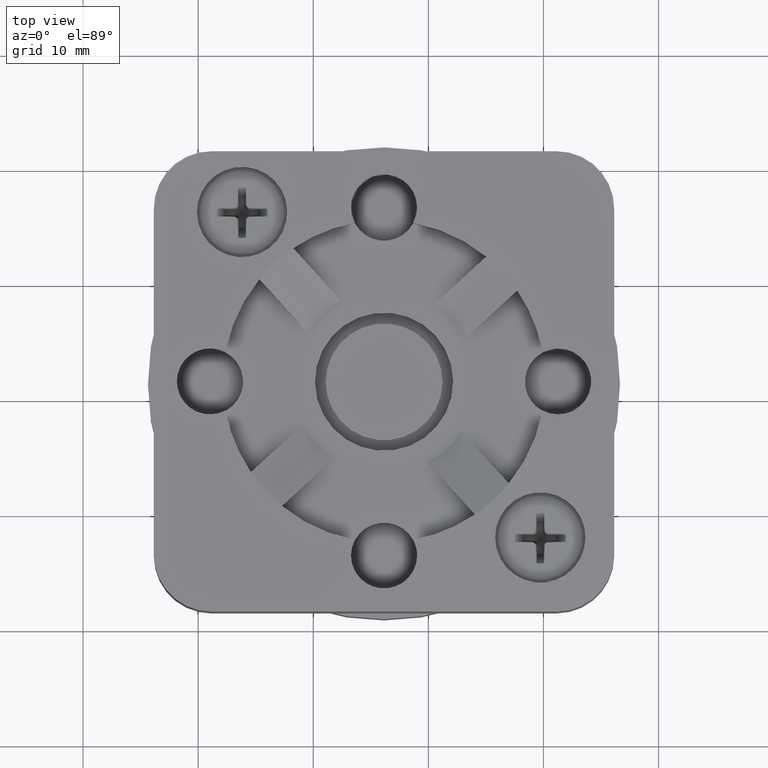
[diagram: clean part render]
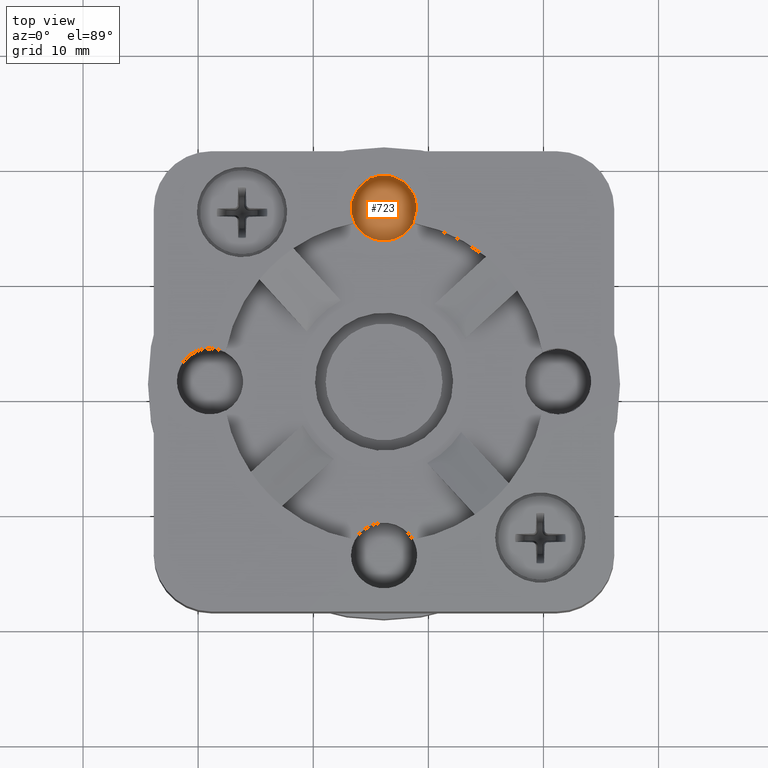
[diagram: same view with one face highlighted and labeled with its STEP entity id]
A machine part, top view. The second image highlights one B-rep face of the part: STEP entity #723.
In plain terms, the highlighted face is a freeform B-spline surface patch.
Its self-contained STEP definition (entity closure, byte-faithful):
#703=CARTESIAN_POINT('',(-0.978483861351104,6.411480461941252,5.500000000000000));
#704=VERTEX_POINT('',#703);
#705=CARTESIAN_POINT('',(-3.853483861351105,6.411480461941252,5.500000000000000));
#706=DIRECTION('',(0.0,0.0,1.0));
#707=DIRECTION('',(1.0,0.0,0.0));
#708=AXIS2_PLACEMENT_3D('',#705,#706,#707);
#709=CIRCLE('',#708,2.875000000000000);
#710=EDGE_CURVE('',#704,#704,#709,.T.);
#715=CARTESIAN_POINT('',(-6.728483861351105,9.286480461941252,5.500000000000000));
#716=CARTESIAN_POINT('',(-0.978483861351105,9.286480461941252,5.500000000000000));
#717=CARTESIAN_POINT('',(-6.728483861351105,3.536480461941251,5.500000000000000));
#718=CARTESIAN_POINT('',(-0.978483861351105,3.536480461941251,5.500000000000000));
#719=B_SPLINE_SURFACE_WITH_KNOTS('',1,1,((#715,#717),(#716,#718)),.UNSPECIFIED.,.F.,.F.,.U.,(2,2),(2,2),(0.0,5.750000000000000),(0.0,5.750000000000002),.UNSPECIFIED.);
#720=ORIENTED_EDGE('',*,*,#710,.T.);
#721=EDGE_LOOP('',(#720));
#722=FACE_OUTER_BOUND('',#721,.T.);
#723=ADVANCED_FACE('',(#722),#719,.F.);